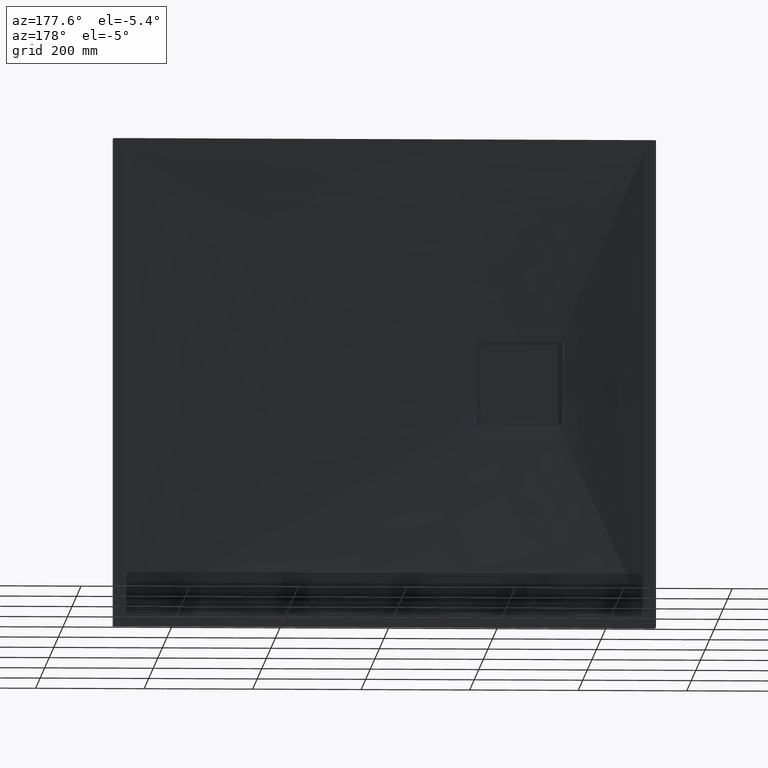
[diagram: clean part render]
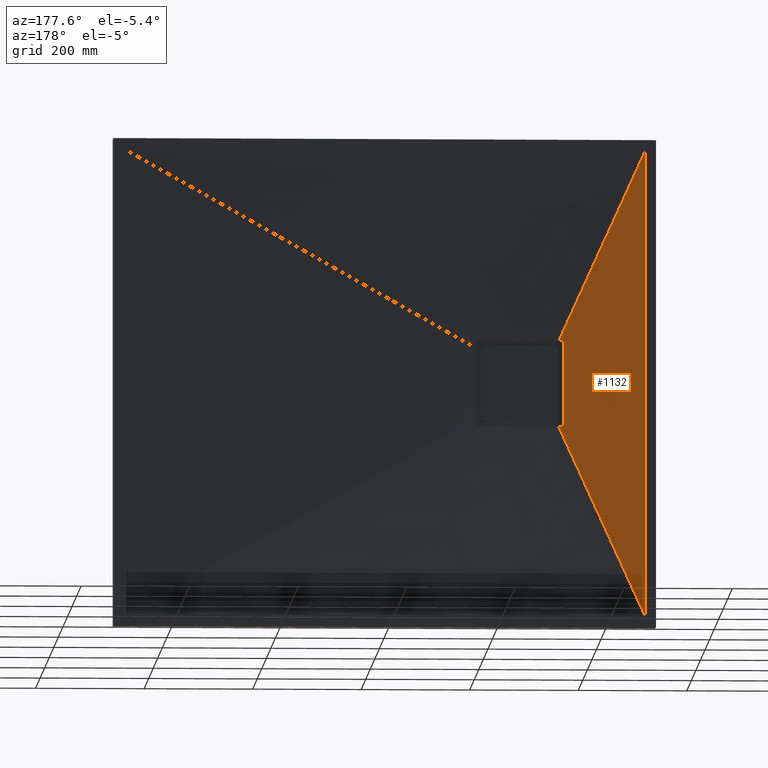
[diagram: same view with one face highlighted and labeled with its STEP entity id]
A machine part, auxiliary view. The second image highlights one B-rep face of the part: STEP entity #1132.
In plain terms, the highlighted face is a freeform B-spline surface patch.
Its self-contained STEP definition (entity closure, byte-faithful):
#64 = CARTESIAN_POINT ( 'NONE',  ( -329.4855557399631000, 21.40981540741272200, 79.02792886668383700 ) ) ;
#72 = CARTESIAN_POINT ( 'NONE',  ( -327.5000000000001100, 21.32843893879354600, 79.99999999999984400 ) ) ;
#152 = CARTESIAN_POINT ( 'NONE',  ( -327.8271345348632100, 21.34428509893557200, 79.98383784301245200 ) ) ;
#162 = VERTEX_POINT ( 'NONE', #1174 ) ;
#172 = ORIENTED_EDGE ( 'NONE', *, *, #816, .T. ) ;
#173 = CARTESIAN_POINT ( 'NONE',  ( -329.9999999999999400, 20.87948733743262900, 51.66838713181558500 ) ) ;
#227 = CARTESIAN_POINT ( 'NONE',  ( -328.3048834082283100, 21.36597185761723200, 79.87254471904697100 ) ) ;
#232 = CARTESIAN_POINT ( 'NONE',  ( -328.6074367700994100, 21.37879021764533100, 79.74730717636704500 ) ) ;
#255 = CARTESIAN_POINT ( 'NONE',  ( -329.7462588976478100, 21.41528181395669600, 78.60942461350232700 ) ) ;
#265 = CARTESIAN_POINT ( 'NONE',  ( -329.9336195526806300, 21.41635754656908800, 78.15841013512651600 ) ) ;
#385 = CARTESIAN_POINT ( 'NONE',  ( -327.6649346521738300, 21.33656411007165900, 79.99999999999984400 ) ) ;
#397 = CARTESIAN_POINT ( 'NONE',  ( -329.9999999999998900, 20.45805537225923500, 32.29514475675670600 ) ) ;
#465 = ORIENTED_EDGE ( 'NONE', *, *, #1326, .T. ) ;
#493 = CARTESIAN_POINT ( 'NONE',  ( -329.3820137878413400, 21.40688848384235500, 79.15366373776304000 ) ) ;
#512 = CARTESIAN_POINT ( 'NONE',  ( -321.6319119134207700, 21.06022482007852000, -80.00000000000018500 ) ) ;
#604 = CARTESIAN_POINT ( 'NONE',  ( -329.0226223096061100, 21.39491574183232500, 79.48954079757703500 ) ) ;
#610 = CARTESIAN_POINT ( 'NONE',  ( -328.7509576551713600, 21.38458072279256300, 79.67065801726154500 ) ) ;
#617 = LINE ( 'NONE', #2481, #2232 ) ;
#638 = CARTESIAN_POINT ( 'NONE',  ( -330.0000000000000600, 21.40709315728617300, -77.50000000000024200 ) ) ;
#658 = VERTEX_POINT ( 'NONE', #1819 ) ;
#663 = CARTESIAN_POINT ( 'NONE',  ( -328.1462850953133700, 21.35895474244314900, 79.92049230733272200 ) ) ;
#687 = CARTESIAN_POINT ( 'NONE',  ( -330.0000000000000600, 21.41030183977579100, -77.66510537551835100 ) ) ;
#706 = CARTESIAN_POINT ( 'NONE',  ( -327.5000000000001100, 21.32843893879354600, 79.99999999999984400 ) ) ;
#711 = EDGE_CURVE ( 'NONE', #3218, #815, #617, .T. ) ;
#718 = EDGE_CURVE ( 'NONE', #906, #658, #2792, .T. ) ;
#734 = B_SPLINE_SURFACE_WITH_KNOTS ( 'NONE', 3, 1, ( 
 ( #2617, #2577 ),
 ( #2900, #2662 ),
 ( #2422, #2439 ),
 ( #2251, #3052 ),
 ( #2567, #2522 ),
 ( #2554, #2517 ),
 ( #2386, #2549 ),
 ( #2564, #2244 ),
 ( #2265, #2271 ),
 ( #2306, #2337 ),
 ( #2133, #2379 ),
 ( #2148, #2315 ),
 ( #2349, #2387 ),
 ( #2401, #2207 ),
 ( #2167, #2197 ),
 ( #2219, #2201 ),
 ( #2188, #2020 ),
 ( #2039, #2036 ) ),
 .UNSPECIFIED., .F., .F., .F.,
 ( 4, 2, 2, 2, 2, 2, 2, 2, 4 ),
 ( 2, 2 ),
 ( 0.0000000000000000000, 0.1250000000000000600, 0.2500000000000001100, 0.3750000000000001700, 0.5000000000000000000, 0.6250000000000002200, 0.7500000000000002200, 0.8750000000000001100, 1.000000000000000000 ),
 ( 0.0000000000000000000, 1.000000000000000000 ),
 .UNSPECIFIED. ) ;
#763 = CARTESIAN_POINT ( 'NONE',  ( -329.9838047038873600, 21.41259661688284800, -77.82746633964464400 ) ) ;
#771 = CARTESIAN_POINT ( 'NONE',  ( -329.9203332326677000, 21.41544895396175700, -78.14692121119826100 ) ) ;
#815 = VERTEX_POINT ( 'NONE', #1618 ) ;
#816 = EDGE_CURVE ( 'NONE', #815, #906, #3230, .T. ) ;
#847 = CARTESIAN_POINT ( 'NONE',  ( -329.8722835000937200, 21.41599804461005600, -78.30567465187377300 ) ) ;
#860 = CARTESIAN_POINT ( 'NONE',  ( -329.7468509180068300, 21.41529245433734400, -78.60837791467574200 ) ) ;
#875 = CARTESIAN_POINT ( 'NONE',  ( -329.6700915759957400, 21.41406314672416800, -78.75195235903092300 ) ) ;
#882 = CARTESIAN_POINT ( 'NONE',  ( -329.4887350719232000, 21.40989812542596100, -79.02368466921257100 ) ) ;
#895 = CARTESIAN_POINT ( 'NONE',  ( -323.5882550835989400, 21.14276391869004000, 79.99999999999984400 ) ) ;
#906 = VERTEX_POINT ( 'NONE', #1900 ) ;
#912 = CARTESIAN_POINT ( 'NONE',  ( -329.3831918599227000, 21.40692336052505200, -79.15232056509272200 ) ) ;
#923 = CARTESIAN_POINT ( 'NONE',  ( -329.1526712214308600, 21.39951655769288800, -79.38288413476830400 ) ) ;
#936 = CARTESIAN_POINT ( 'NONE',  ( -329.0268923320343800, 21.39507224197738800, -79.48635197862580500 ) ) ;
#947 = CARTESIAN_POINT ( 'NONE',  ( -328.7537967015547900, 21.38469452237177700, -79.66909847812105700 ) ) ;
#957 = CARTESIAN_POINT ( 'NONE',  ( -328.6084710456621600, 21.37883136953759300, -79.74672074794953900 ) ) ;
#971 = CARTESIAN_POINT ( 'NONE',  ( -328.1577255919526700, 21.35974246319417300, -79.93377192009496900 ) ) ;
#975 = ORIENTED_EDGE ( 'NONE', *, *, #2834, .T. ) ;
#1004 = CARTESIAN_POINT ( 'NONE',  ( -327.8298637507341500, 21.34468900776228400, -80.00000000000018500 ) ) ;
#1016 = CARTESIAN_POINT ( 'NONE',  ( -327.5000000000001100, 21.32843893879354600, -80.00000000000018500 ) ) ;
#1019 = ORIENTED_EDGE ( 'NONE', *, *, #1837, .T. ) ;
#1097 = CARTESIAN_POINT ( 'NONE',  ( -325.5442878227282800, 21.23209474306757700, 79.99999999999995700 ) ) ;
#1132 = ADVANCED_FACE ( 'NONE', ( #2275 ), #734, .F. ) ;
#1174 = CARTESIAN_POINT ( 'NONE',  ( -330.0000000000000600, 21.40709315728617300, -77.50000000000024200 ) ) ;
#1225 = VECTOR ( 'NONE', #2311, 1000.000000000000000 ) ;
#1284 = CARTESIAN_POINT ( 'NONE',  ( -325.5442878227278200, 21.23209474306758100, -80.00000000000018500 ) ) ;
#1297 = CARTESIAN_POINT ( 'NONE',  ( -327.5000000000001100, 21.32843893879354600, -80.00000000000018500 ) ) ;
#1309 = DIRECTION ( 'NONE',  ( -0.4119718385078122200, 0.03626232329153510800, -0.9104747378076962800 ) ) ;
#1318 = LINE ( 'NONE', #2053, #1225 ) ;
#1326 = EDGE_CURVE ( 'NONE', #1979, #3218, #1318, .T. ) ;
#1375 = VERTEX_POINT ( 'NONE', #2495 ) ;
#1463 = EDGE_CURVE ( 'NONE', #658, #162, #2880, .T. ) ;
#1480 = CARTESIAN_POINT ( 'NONE',  ( -330.0000000000001700, 19.99998395397091500, -6.458321807796131100 ) ) ;
#1522 = CARTESIAN_POINT ( 'NONE',  ( -480.0000000000000000, 35.00000000000002800, -430.0000000000002300 ) ) ;
#1578 = CARTESIAN_POINT ( 'NONE',  ( -321.6319119134207700, 21.06022482007852000, 79.99999999999984400 ) ) ;
#1608 = ORIENTED_EDGE ( 'NONE', *, *, #711, .T. ) ;
#1618 = CARTESIAN_POINT ( 'NONE',  ( -321.6319119134207700, 21.06022482007852000, 79.99999999999984400 ) ) ;
#1704 = CARTESIAN_POINT ( 'NONE',  ( -323.5882550835989400, 21.14276391868992600, -80.00000000000018500 ) ) ;
#1713 = CARTESIAN_POINT ( 'NONE',  ( -321.6319119134207700, 21.06022482007852000, -80.00000000000018500 ) ) ;
#1730 = CARTESIAN_POINT ( 'NONE',  ( -330.0000000000000600, 21.40709315728617300, 77.49999999999990100 ) ) ;
#1760 = B_SPLINE_CURVE_WITH_KNOTS ( 'NONE', 3,
 ( #638, #687, #763, #771, #847, #860, #875, #882, #912, #923, #936, #947, #957, #971, #1004, #1016 ),
 .UNSPECIFIED., .F., .F.,
 ( 4, 2, 2, 2, 2, 2, 2, 4 ),
 ( 0.0000000000000000000, 0.0004883797584370969200, 0.0009767595168741938400, 0.001465139275311290500, 0.001953519033748387700, 0.002441898792185484800, 0.002930278550622581100, 0.003907038067496928900 ),
 .UNSPECIFIED. ) ;
#1814 = CARTESIAN_POINT ( 'NONE',  ( -330.0000000000001700, 20.00001605092252500, 6.462261460551941300 ) ) ;
#1819 = CARTESIAN_POINT ( 'NONE',  ( -330.0000000000000600, 21.40709315728617300, 77.49999999999990100 ) ) ;
#1837 = EDGE_CURVE ( 'NONE', #1849, #1979, #1980, .T. ) ;
#1846 = CARTESIAN_POINT ( 'NONE',  ( -330.0000000000000000, 21.41351067114575100, 77.83021841179595400 ) ) ;
#1849 = VERTEX_POINT ( 'NONE', #512 ) ;
#1900 = CARTESIAN_POINT ( 'NONE',  ( -327.5000000000001100, 21.32843893879354600, 79.99999999999984400 ) ) ;
#1917 = CARTESIAN_POINT ( 'NONE',  ( -329.6684564295919100, 21.41403504335802700, 78.75490833573900300 ) ) ;
#1955 = CARTESIAN_POINT ( 'NONE',  ( -330.0000000000003400, 20.08463100456362900, 12.92103044643447900 ) ) ;
#1976 = ORIENTED_EDGE ( 'NONE', *, *, #1463, .T. ) ;
#1979 = VERTEX_POINT ( 'NONE', #1522 ) ;
#1980 = LINE ( 'NONE', #2363, #2085 ) ;
#2020 = CARTESIAN_POINT ( 'NONE',  ( -312.5549623422334700, 20.00000000000001800, -50.06659820936221200 ) ) ;
#2036 = CARTESIAN_POINT ( 'NONE',  ( -309.5868268578447600, 20.00000000000001800, -53.37986572681941100 ) ) ;
#2039 = CARTESIAN_POINT ( 'NONE',  ( -480.0000000000000000, 35.00000000000002800, -430.0000000000002300 ) ) ;
#2053 = CARTESIAN_POINT ( 'NONE',  ( -480.0000000000000000, 35.00000000000002800, -430.0000000000002300 ) ) ;
#2056 = DIRECTION ( 'NONE',  ( 0.4119718385078120500, -0.03626232329153512200, -0.9104747378076963900 ) ) ;
#2085 = VECTOR ( 'NONE', #1309, 1000.000000000000200 ) ;
#2094 = CARTESIAN_POINT ( 'NONE',  ( -330.0000000000001700, 20.31630846044489000, 25.83742035726166000 ) ) ;
#2133 = CARTESIAN_POINT ( 'NONE',  ( -480.0000000000000000, 35.00000000000002800, -71.66666666666709800 ) ) ;
#2146 = CARTESIAN_POINT ( 'NONE',  ( -330.0000000000000600, 21.40709315728617300, -77.50000000000024200 ) ) ;
#2148 = CARTESIAN_POINT ( 'NONE',  ( -480.0000000000000000, 35.00000000000002800, -143.3333333333338500 ) ) ;
#2154 = CARTESIAN_POINT ( 'NONE',  ( -330.0000000000001100, 21.28157895442835500, -71.04156428292012000 ) ) ;
#2167 = CARTESIAN_POINT ( 'NONE',  ( -480.0000000000000000, 35.00000000000002800, -286.6666666666670800 ) ) ;
#2174 = CARTESIAN_POINT ( 'NONE',  ( -330.0000000000001700, 20.87945327084982200, -51.66679109580835000 ) ) ;
#2180 = CARTESIAN_POINT ( 'NONE',  ( -329.9999999999999400, 20.73867467724322500, -45.20867397362349000 ) ) ;
#2188 = CARTESIAN_POINT ( 'NONE',  ( -480.0000000000000000, 35.00000000000002800, -394.1666666666669700 ) ) ;
#2197 = CARTESIAN_POINT ( 'NONE',  ( -320.3358666746325400, 20.00000000000001800, -38.40653782150494100 ) ) ;
#2201 = CARTESIAN_POINT ( 'NONE',  ( -315.3417018056985600, 20.00000000000001800, -46.39674873783250300 ) ) ;
#2207 = CARTESIAN_POINT ( 'NONE',  ( -322.5419731853378400, 20.00000000000001800, -34.08604912029267100 ) ) ;
#2219 = CARTESIAN_POINT ( 'NONE',  ( -480.0000000000000000, 35.00000000000002800, -358.3333333333336600 ) ) ;
#2232 = VECTOR ( 'NONE', #2056, 1000.000000000000100 ) ;
#2244 = CARTESIAN_POINT ( 'NONE',  ( -329.5081983261587200, 20.00000000000001800, 10.19685271837222900 ) ) ;
#2250 = CARTESIAN_POINT ( 'NONE',  ( -330.0000000000001700, 21.15063636896162400, -64.58324186580844600 ) ) ;
#2251 = CARTESIAN_POINT ( 'NONE',  ( -480.0000000000000000, 35.00000000000002800, 286.6666666666662900 ) ) ;
#2252 = CARTESIAN_POINT ( 'NONE',  ( -330.0000000000000000, 20.31624233113826300, -25.83431689525572500 ) ) ;
#2256 = CARTESIAN_POINT ( 'NONE',  ( -329.9999999999999400, 20.08457470818180800, -12.91730817154210700 ) ) ;
#2259 = CARTESIAN_POINT ( 'NONE',  ( -330.0000000000000000, 20.45799653757365600, -32.29242138197324900 ) ) ;
#2265 = CARTESIAN_POINT ( 'NONE',  ( -480.0000000000000000, 35.00000000000002800, 35.83333333333293800 ) ) ;
#2271 = CARTESIAN_POINT ( 'NONE',  ( -330.0000000000000600, 20.00000000000001800, 5.098844633448451600 ) ) ;
#2275 = FACE_OUTER_BOUND ( 'NONE', #2725, .T. ) ;
#2304 = ORIENTED_EDGE ( 'NONE', *, *, #2884, .T. ) ;
#2306 = CARTESIAN_POINT ( 'NONE',  ( -480.0000000000000000, 35.00000000000002800, -35.83333333333371900 ) ) ;
#2307 = CARTESIAN_POINT ( 'NONE',  ( -330.0000000000000600, 21.40709315728617300, 77.49999999999990100 ) ) ;
#2311 = DIRECTION ( 'NONE',  ( 1.290957005378089100E-016, 0.0000000000000000000, 1.000000000000000000 ) ) ;
#2315 = CARTESIAN_POINT ( 'NONE',  ( -327.5934928437598000, 20.00000000000001800, -20.11912708686369900 ) ) ;
#2337 = CARTESIAN_POINT ( 'NONE',  ( -330.0000000000000600, 20.00000000000001800, -5.098844633448895700 ) ) ;
#2349 = CARTESIAN_POINT ( 'NONE',  ( -480.0000000000000000, 35.00000000000002800, -179.1666666666672500 ) ) ;
#2363 = CARTESIAN_POINT ( 'NONE',  ( -394.7934134289221800, 27.49999999999996800, -241.6899328634097800 ) ) ;
#2379 = CARTESIAN_POINT ( 'NONE',  ( -329.5081983261587200, 20.00000000000001800, -10.19685271837267300 ) ) ;
#2386 = CARTESIAN_POINT ( 'NONE',  ( -480.0000000000000000, 35.00000000000002800, 143.3333333333328600 ) ) ;
#2387 = CARTESIAN_POINT ( 'NONE',  ( -326.1714659233301200, 20.00000000000001800, -24.94202071493511900 ) ) ;
#2401 = CARTESIAN_POINT ( 'NONE',  ( -480.0000000000000000, 35.00000000000002800, -250.8333333333338000 ) ) ;
#2422 = CARTESIAN_POINT ( 'NONE',  ( -480.0000000000000000, 35.00000000000002800, 358.3333333333330900 ) ) ;
#2439 = CARTESIAN_POINT ( 'NONE',  ( -315.3417018056985600, 20.00000000000001800, 46.39674873783206300 ) ) ;
#2481 = CARTESIAN_POINT ( 'NONE',  ( -394.7934134289221800, 27.49999999999996800, 241.6899328634093500 ) ) ;
#2495 = CARTESIAN_POINT ( 'NONE',  ( -327.5000000000001100, 21.32843893879354600, -80.00000000000018500 ) ) ;
#2517 = CARTESIAN_POINT ( 'NONE',  ( -326.1714659233301200, 20.00000000000001800, 24.94202071493467800 ) ) ;
#2522 = CARTESIAN_POINT ( 'NONE',  ( -322.5419731853378400, 20.00000000000001800, 34.08604912029223000 ) ) ;
#2531 = CARTESIAN_POINT ( 'NONE',  ( -330.0000000000000600, 21.28158704573864000, 71.04198062789215800 ) ) ;
#2549 = CARTESIAN_POINT ( 'NONE',  ( -327.5934928437598000, 20.00000000000001800, 20.11912708686325100 ) ) ;
#2554 = CARTESIAN_POINT ( 'NONE',  ( -480.0000000000000000, 35.00000000000002800, 179.1666666666661500 ) ) ;
#2564 = CARTESIAN_POINT ( 'NONE',  ( -480.0000000000000000, 35.00000000000002800, 71.66666666666621700 ) ) ;
#2567 = CARTESIAN_POINT ( 'NONE',  ( -480.0000000000000000, 35.00000000000002800, 250.8333333333329200 ) ) ;
#2577 = CARTESIAN_POINT ( 'NONE',  ( -309.5868268578447600, 20.00000000000001800, 53.37986572681896300 ) ) ;
#2617 = CARTESIAN_POINT ( 'NONE',  ( -480.0000000000000000, 35.00000000000002800, 429.9999999999998300 ) ) ;
#2662 = CARTESIAN_POINT ( 'NONE',  ( -312.5549623422334700, 20.00000000000001800, 50.06659820936177100 ) ) ;
#2697 = CARTESIAN_POINT ( 'NONE',  ( -480.0000000000000000, 35.00000000000002800, 429.9999999999998300 ) ) ;
#2711 = CARTESIAN_POINT ( 'NONE',  ( -330.0000000000000000, 20.73871785447922300, 45.21064497982437300 ) ) ;
#2725 = EDGE_LOOP ( 'NONE', ( #1608, #172, #2952, #1976, #975, #2304, #1019, #465 ) ) ;
#2792 = B_SPLINE_CURVE_WITH_KNOTS ( 'NONE', 3,
 ( #72, #385, #152, #663, #227, #232, #610, #604, #3279, #493, #64, #1917, #255, #265, #1846, #1730 ),
 .UNSPECIFIED., .F., .F.,
 ( 4, 2, 2, 2, 2, 2, 2, 4 ),
 ( 0.0000000000000000000, 0.0004883799617228793300, 0.0009767599234457586700, 0.001465139885168637900, 0.001953519846891517300, 0.002441899808614396800, 0.002930279770337275800, 0.003907039693783059800 ),
 .UNSPECIFIED. ) ;
#2834 = EDGE_CURVE ( 'NONE', #162, #1375, #1760, .T. ) ;
#2880 = B_SPLINE_CURVE_WITH_KNOTS ( 'NONE', 3,
 ( #2307, #2531, #3186, #173, #2711, #397, #2094, #1955, #1814, #1480, #2256, #2252, #2259, #2180, #2174, #2250, #2154, #2146 ),
 .UNSPECIFIED., .F., .F.,
 ( 4, 2, 2, 2, 2, 2, 2, 2, 4 ),
 ( 0.0000000000000000000, 0.01937770076957002000, 0.03875540153914004000, 0.05813310230871007000, 0.07751080307828008000, 0.09688850384785012400, 0.1162662046174201500, 0.1356439053869902000, 0.1550216061565602700 ),
 .UNSPECIFIED. ) ;
#2884 = EDGE_CURVE ( 'NONE', #1375, #1849, #3277, .T. ) ;
#2900 = CARTESIAN_POINT ( 'NONE',  ( -480.0000000000000000, 35.00000000000002800, 394.1666666666664600 ) ) ;
#2952 = ORIENTED_EDGE ( 'NONE', *, *, #718, .T. ) ;
#3052 = CARTESIAN_POINT ( 'NONE',  ( -320.3358666746325400, 20.00000000000001800, 38.40653782150449300 ) ) ;
#3186 = CARTESIAN_POINT ( 'NONE',  ( -330.0000000000000600, 21.15065298484529100, 64.58405984060621600 ) ) ;
#3218 = VERTEX_POINT ( 'NONE', #2697 ) ;
#3230 = B_SPLINE_CURVE_WITH_KNOTS ( 'NONE', 3,
 ( #1578, #895, #1097, #706 ),
 .UNSPECIFIED., .F., .F.,
 ( 4, 4 ),
 ( 0.0000000000000000000, 0.005874214552204457500 ),
 .UNSPECIFIED. ) ;
#3277 = B_SPLINE_CURVE_WITH_KNOTS ( 'NONE', 3,
 ( #1297, #1284, #1704, #1713 ),
 .UNSPECIFIED., .F., .F.,
 ( 4, 4 ),
 ( 0.0000000000000000000, 0.005874214552204346500 ),
 .UNSPECIFIED. ) ;
#3279 = CARTESIAN_POINT ( 'NONE',  ( -329.1513064915807800, 21.39946969923080300, 79.38408240957778600 ) ) ;